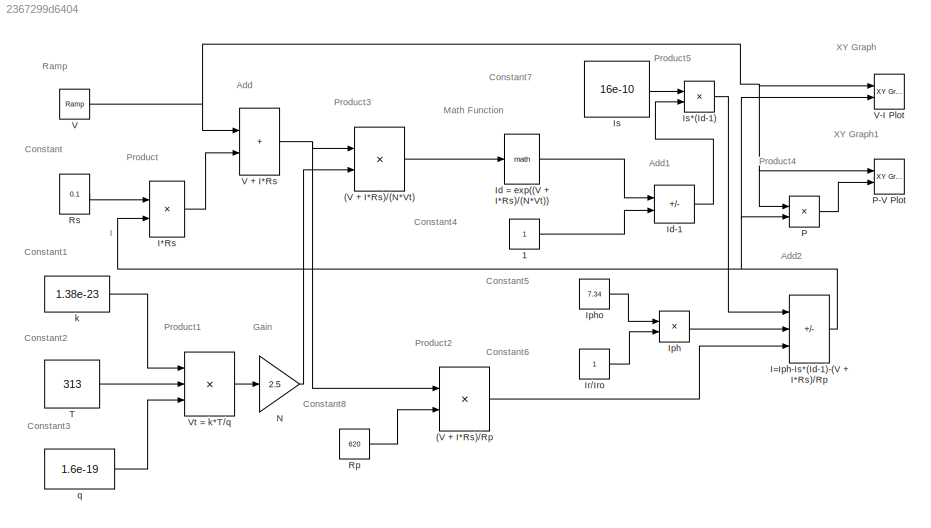
MODEL slx_2367299d6404
KIND model
CONFIG AbsTol = auto
CONFIG EnableMultiTasking = off
CONFIG FixedStep = auto
CONFIG MaxStep = auto
CONFIG MinStep = auto
CONFIG RelTol = 1e-3
CONFIG SampleTimeConstraint = Unconstrained
CONFIG Solver = VariableStepAuto
CONFIG SolverName = VariableStepAuto
CONFIG StartTime = 0.0
CONFIG StopTime = 10.0
BLOCK [Product] (V + I*Rs)//(N*Vt)
  Inputs = */
  Ports = [2, 1]
BLOCK [Product] (V + I*Rs)//Rp
  Inputs = */
  Ports = [2, 1]
BLOCK [Constant] 1
BLOCK [Product] I*Rs
  Ports = [2, 1]
BLOCK [Sum] I=Iph-Is*(Id-1)-(V + I*Rs)//Rp
  IconShape = rectangular
  Inputs = -+-
  Ports = [3, 1]
BLOCK [Math] Id = exp((V + I*Rs)//(N*Vt))
  Ports = [1, 1]
BLOCK [Sum] Id-1
  IconShape = rectangular
  Inputs = +-
  Ports = [2, 1]
BLOCK [Product] Iph
  Ports = [2, 1]
BLOCK [Constant] Ipho
  Value = 7.34
BLOCK [Constant] Ir//Iro
BLOCK [Constant] Is
  Value = 16e-10
BLOCK [Product] Is*(Id-1)
  Ports = [2, 1]
BLOCK [Gain] N
  Gain = 2.5
BLOCK [Product] P
  Ports = [2, 1]
BLOCK [Reference] P-V Plot  REF=simulink/Sinks/XY Graph
  Ports = [2]
  SourceBlock = simulink/Sinks/XY Graph
  SourceProductBaseCode = SL
  SourceType = XY scope.
BLOCK [Constant] Rp
  Value = 620
BLOCK [Constant] Rs
  Value = 0.1
BLOCK [Constant] T
  Value = 313
BLOCK [Reference] V  REF=simulink/Sources/Ramp
  Ports = [0, 1]
  SourceBlock = simulink/Sources/Ramp
  SourceProductBaseCode = SL
  SourceType = Ramp
BLOCK [Sum] V + I*Rs
  IconShape = rectangular
  Ports = [2, 1]
BLOCK [Reference] V-I Plot  REF=simulink/Sinks/XY Graph
  Ports = [2]
  SourceBlock = simulink/Sinks/XY Graph
  SourceProductBaseCode = SL
  SourceType = XY scope.
BLOCK [Product] Vt = k*T//q
  Inputs = **/
  Ports = [3, 1]
BLOCK [Constant] k
  Value = 1.38e-23
BLOCK [Constant] q
  Value = 1.6e-19
ANNOTATION (root): Add1
ANNOTATION (root): Add2
ANNOTATION (root): Add
ANNOTATION (root): Constant1
ANNOTATION (root): Constant2
ANNOTATION (root): Constant3
ANNOTATION (root): Constant4
ANNOTATION (root): Constant5
ANNOTATION (root): Constant6
ANNOTATION (root): Constant7
ANNOTATION (root): Constant8
ANNOTATION (root): Constant
ANNOTATION (root): Gain
ANNOTATION (root): Math Function
ANNOTATION (root): Product1
ANNOTATION (root): Product2
ANNOTATION (root): Product3
ANNOTATION (root): Product4
ANNOTATION (root): Product5
ANNOTATION (root): Product
ANNOTATION (root): Ramp
ANNOTATION (root): XY Graph1
ANNOTATION (root): XY Graph
ANNOTATION (root): I
LINE (V + I*Rs)//(N*Vt):1 -> Id = exp((V + I*Rs)//(N*Vt)):1
LINE (V + I*Rs)//Rp:1 -> I=Iph-Is*(Id-1)-(V + I*Rs)//Rp:3
LINE 1:1 -> Id-1:2
LINE I*Rs:1 -> V + I*Rs:2
NET I=Iph-Is*(Id-1)-(V + I*Rs)//Rp:1 -> I*Rs:2, P:2, V-I Plot:2
LINE Id = exp((V + I*Rs)//(N*Vt)):1 -> Id-1:1
LINE Id-1:1 -> Is*(Id-1):2
LINE Iph:1 -> I=Iph-Is*(Id-1)-(V + I*Rs)//Rp:2
LINE Ipho:1 -> Iph:1
LINE Ir//Iro:1 -> Iph:2
LINE Is*(Id-1):1 -> I=Iph-Is*(Id-1)-(V + I*Rs)//Rp:1
LINE Is:1 -> Is*(Id-1):1
LINE N:1 -> (V + I*Rs)//(N*Vt):2
LINE P:1 -> P-V Plot:2
LINE Rp:1 -> (V + I*Rs)//Rp:2
LINE Rs:1 -> I*Rs:1
LINE T:1 -> Vt = k*T//q:2
NET V + I*Rs:1 -> (V + I*Rs)//(N*Vt):1, (V + I*Rs)//Rp:1
NET V:1 -> P-V Plot:1, P:1, V + I*Rs:1, V-I Plot:1
LINE Vt = k*T//q:1 -> N:1
LINE k:1 -> Vt = k*T//q:1
LINE q:1 -> Vt = k*T//q:3
note: NET lines group one-source signal fan-out (src -> all destinations, sorted); 1:1 wires keep LINE
